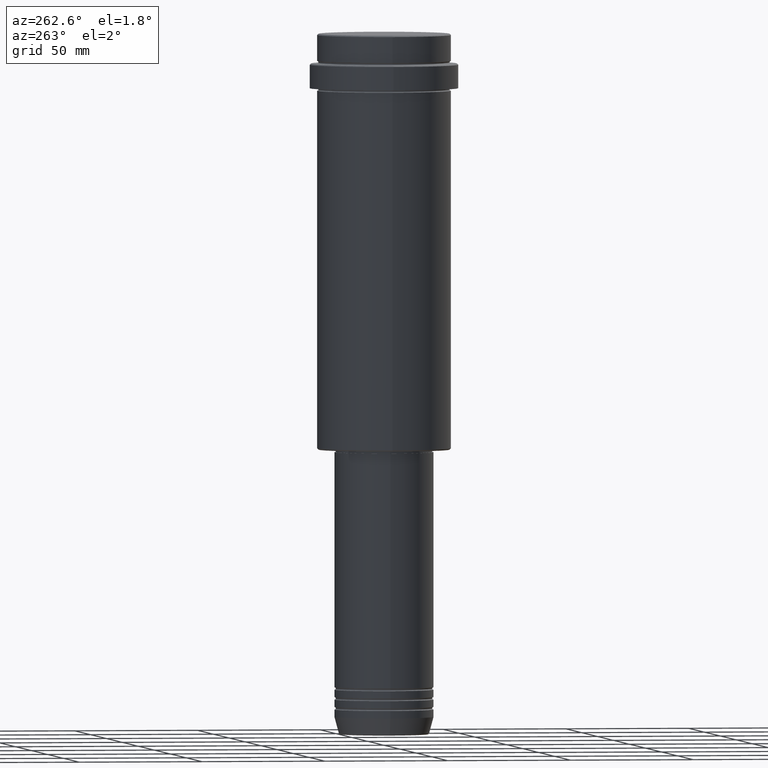
[diagram: clean part render]
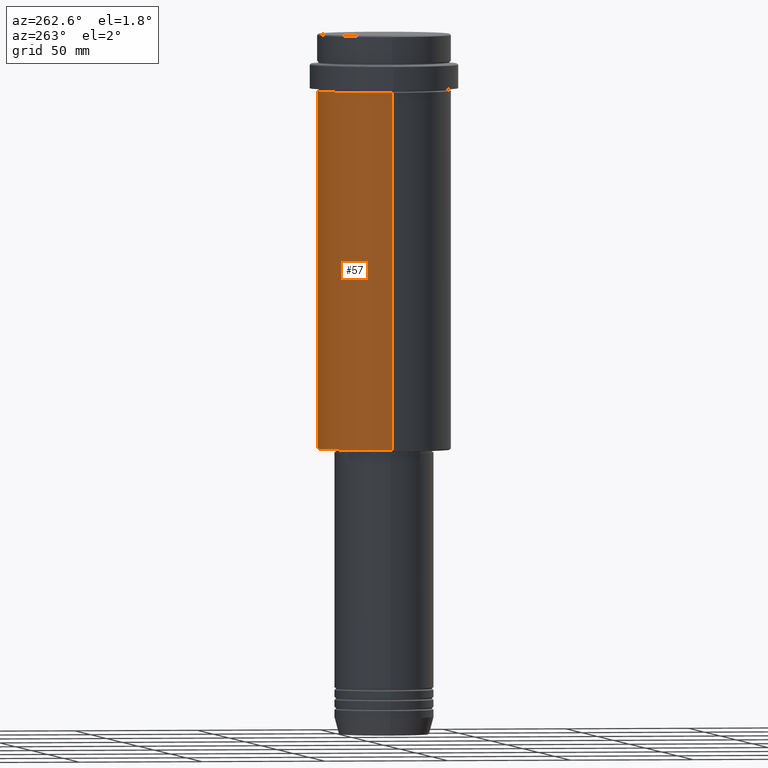
[diagram: same view with one face highlighted and labeled with its STEP entity id]
A machine part, auxiliary view. The second image highlights one B-rep face of the part: STEP entity #57.
In plain terms, the highlighted cylindrical surface (partial cylindrical patch) has radius 27 mm, axis along (-0, -0, 1).
Its self-contained STEP definition (entity closure, byte-faithful):
#8 = CARTESIAN_POINT ( 'NONE',  ( -26.99999999999999645, 3.306546357697853339E-15, -23.00000000000000000 ) ) ;
#38 = DIRECTION ( 'NONE',  ( -0.000000000000000000, -0.000000000000000000, 1.000000000000000000 ) ) ;
#57 = ADVANCED_FACE ( 'NONE', ( #760 ), #1181, .T. ) ;
#91 = DIRECTION ( 'NONE',  ( -1.000000000000000000, 0.000000000000000000, 0.000000000000000000 ) ) ;
#99 = CARTESIAN_POINT ( 'NONE',  ( -26.99999999999999645, 3.306546357697853339E-15, 0.000000000000000000 ) ) ;
#149 = VERTEX_POINT ( 'NONE', #765 ) ;
#226 = DIRECTION ( 'NONE',  ( 1.000000000000000000, 0.000000000000000000, 0.000000000000000000 ) ) ;
#334 = ORIENTED_EDGE ( 'NONE', *, *, #1401, .F. ) ;
#397 = DIRECTION ( 'NONE',  ( 1.000000000000000000, 0.000000000000000000, 0.000000000000000000 ) ) ;
#432 = CARTESIAN_POINT ( 'NONE',  ( 26.99999999999999645, 0.000000000000000000, -167.5000000000000853 ) ) ;
#491 = EDGE_LOOP ( 'NONE', ( #1331, #784, #334, #870 ) ) ;
#517 = CIRCLE ( 'NONE', #1276, 26.99999999999999645 ) ;
#553 = DIRECTION ( 'NONE',  ( -0.000000000000000000, -0.000000000000000000, 1.000000000000000000 ) ) ;
#596 = EDGE_CURVE ( 'NONE', #666, #1187, #517, .T. ) ;
#631 = AXIS2_PLACEMENT_3D ( 'NONE', #734, #38, #397 ) ;
#654 = CARTESIAN_POINT ( 'NONE',  ( 0.000000000000000000, 0.000000000000000000, 0.000000000000000000 ) ) ;
#666 = VERTEX_POINT ( 'NONE', #432 ) ;
#706 = LINE ( 'NONE', #944, #1163 ) ;
#716 = CIRCLE ( 'NONE', #631, 26.99999999999999645 ) ;
#734 = CARTESIAN_POINT ( 'NONE',  ( 0.000000000000000000, 0.000000000000000000, -23.00000000000000000 ) ) ;
#760 = FACE_OUTER_BOUND ( 'NONE', #491, .T. ) ;
#765 = CARTESIAN_POINT ( 'NONE',  ( 26.99999999999999645, 0.000000000000000000, -23.00000000000000000 ) ) ;
#784 = ORIENTED_EDGE ( 'NONE', *, *, #1132, .T. ) ;
#791 = VERTEX_POINT ( 'NONE', #8 ) ;
#805 = VECTOR ( 'NONE', #553, 1000.000000000000000 ) ;
#870 = ORIENTED_EDGE ( 'NONE', *, *, #1324, .F. ) ;
#896 = CARTESIAN_POINT ( 'NONE',  ( -26.99999999999999645, 3.306546357697853339E-15, -167.5000000000000853 ) ) ;
#944 = CARTESIAN_POINT ( 'NONE',  ( 26.99999999999999645, 0.000000000000000000, 0.000000000000000000 ) ) ;
#1007 = AXIS2_PLACEMENT_3D ( 'NONE', #654, #1204, #226 ) ;
#1093 = LINE ( 'NONE', #99, #805 ) ;
#1132 = EDGE_CURVE ( 'NONE', #1187, #791, #1093, .T. ) ;
#1163 = VECTOR ( 'NONE', #1371, 1000.000000000000000 ) ;
#1168 = CARTESIAN_POINT ( 'NONE',  ( 0.000000000000000000, 0.000000000000000000, -167.5000000000000853 ) ) ;
#1181 = CYLINDRICAL_SURFACE ( 'NONE', #1007, 26.99999999999999645 ) ;
#1187 = VERTEX_POINT ( 'NONE', #896 ) ;
#1204 = DIRECTION ( 'NONE',  ( -0.000000000000000000, -0.000000000000000000, 1.000000000000000000 ) ) ;
#1261 = DIRECTION ( 'NONE',  ( -0.000000000000000000, -0.000000000000000000, 1.000000000000000000 ) ) ;
#1276 = AXIS2_PLACEMENT_3D ( 'NONE', #1168, #1261, #91 ) ;
#1324 = EDGE_CURVE ( 'NONE', #666, #149, #706, .T. ) ;
#1331 = ORIENTED_EDGE ( 'NONE', *, *, #596, .T. ) ;
#1371 = DIRECTION ( 'NONE',  ( -0.000000000000000000, -0.000000000000000000, 1.000000000000000000 ) ) ;
#1401 = EDGE_CURVE ( 'NONE', #149, #791, #716, .T. ) ;